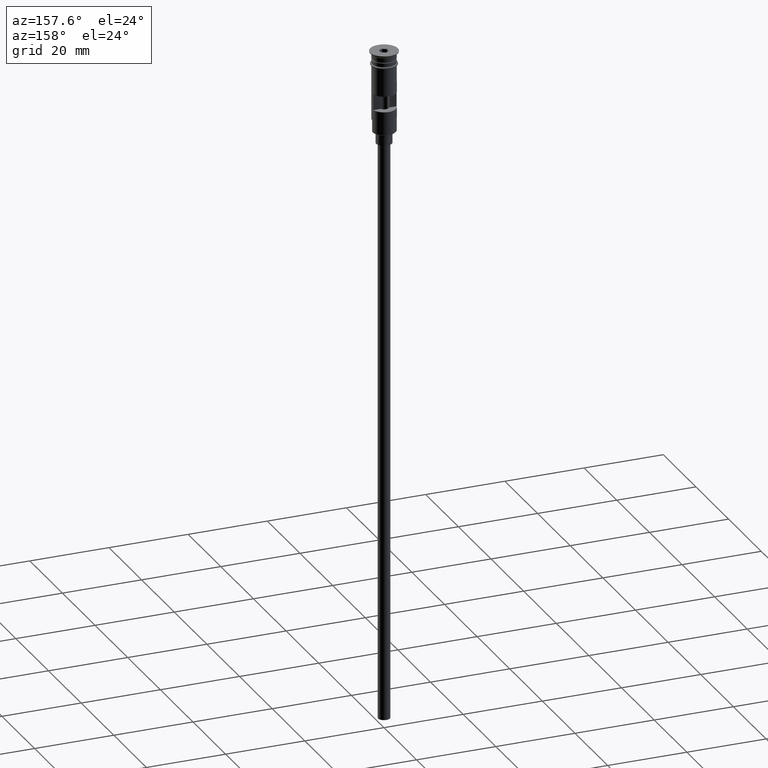
[diagram: clean part render]
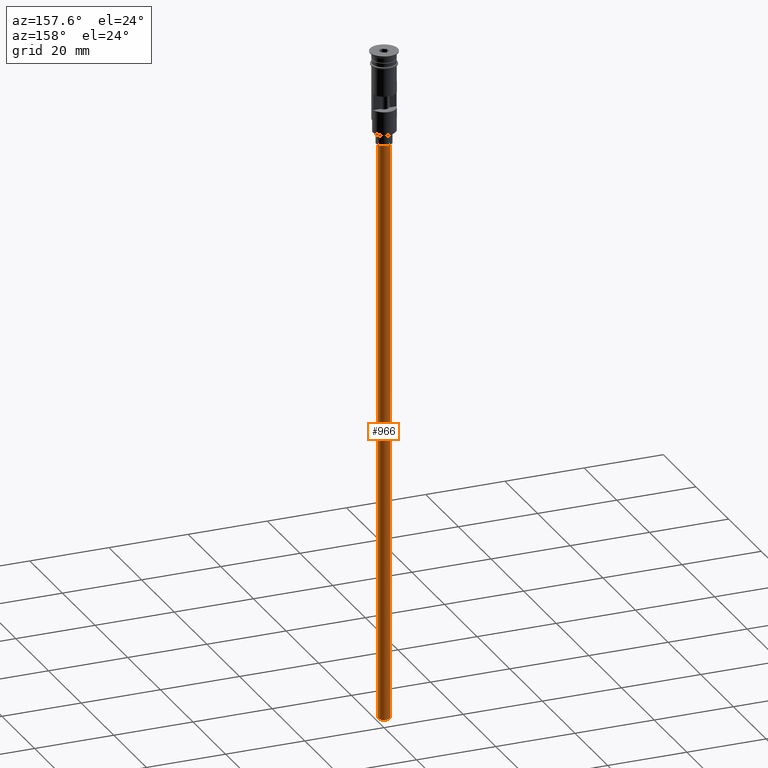
[diagram: same view with one face highlighted and labeled with its STEP entity id]
A machine part, auxiliary view. The second image highlights one B-rep face of the part: STEP entity #966.
In plain terms, the highlighted cylindrical surface (edge-blend (fillet) strip) has radius 1.5 mm, axis along (-0, -0, 1).
Its self-contained STEP definition (entity closure, byte-faithful):
#69 = CARTESIAN_POINT ( 'NONE',  ( 0.000000000000000000, 0.000000000000000000, -170.4999999999999716 ) ) ;
#96 = EDGE_CURVE ( 'NONE', #459, #863, #1103, .T. ) ;
#111 = DIRECTION ( 'NONE',  ( -1.000000000000000000, 0.000000000000000000, 0.000000000000000000 ) ) ;
#130 = AXIS2_PLACEMENT_3D ( 'NONE', #1144, #1397, #286 ) ;
#132 = ORIENTED_EDGE ( 'NONE', *, *, #1154, .F. ) ;
#155 = FACE_OUTER_BOUND ( 'NONE', #1055, .T. ) ;
#167 = VERTEX_POINT ( 'NONE', #606 ) ;
#209 = ORIENTED_EDGE ( 'NONE', *, *, #1043, .F. ) ;
#225 = CARTESIAN_POINT ( 'NONE',  ( 0.000000000000000000, 0.000000000000000000, -23.50000000000000000 ) ) ;
#237 = ORIENTED_EDGE ( 'NONE', *, *, #96, .T. ) ;
#265 = CARTESIAN_POINT ( 'NONE',  ( 1.500000000000000222, 0.000000000000000000, -170.4999999999999716 ) ) ;
#286 = DIRECTION ( 'NONE',  ( 1.000000000000000000, 0.000000000000000000, 0.000000000000000000 ) ) ;
#310 = ORIENTED_EDGE ( 'NONE', *, *, #1390, .T. ) ;
#408 = CARTESIAN_POINT ( 'NONE',  ( 1.500000000000000222, 0.000000000000000000, -23.50000000000000000 ) ) ;
#459 = VERTEX_POINT ( 'NONE', #1193 ) ;
#488 = VECTOR ( 'NONE', #1194, 1000.000000000000000 ) ;
#560 = DIRECTION ( 'NONE',  ( -1.000000000000000000, 0.000000000000000000, 0.000000000000000000 ) ) ;
#589 = VECTOR ( 'NONE', #753, 1000.000000000000000 ) ;
#606 = CARTESIAN_POINT ( 'NONE',  ( -1.500000000000000222, 1.836970198721030181E-16, -170.4999999999999716 ) ) ;
#640 = CYLINDRICAL_SURFACE ( 'NONE', #130, 1.500000000000000222 ) ;
#682 = CARTESIAN_POINT ( 'NONE',  ( -1.500000000000000222, 1.836970198721030181E-16, -170.4999999999999716 ) ) ;
#753 = DIRECTION ( 'NONE',  ( -0.000000000000000000, -0.000000000000000000, 1.000000000000000000 ) ) ;
#789 = VERTEX_POINT ( 'NONE', #885 ) ;
#863 = VERTEX_POINT ( 'NONE', #408 ) ;
#885 = CARTESIAN_POINT ( 'NONE',  ( 1.500000000000000222, 0.000000000000000000, -170.4999999999999716 ) ) ;
#927 = LINE ( 'NONE', #682, #488 ) ;
#966 = ADVANCED_FACE ( 'NONE', ( #155 ), #640, .T. ) ;
#1027 = LINE ( 'NONE', #265, #589 ) ;
#1043 = EDGE_CURVE ( 'NONE', #167, #789, #1319, .T. ) ;
#1055 = EDGE_LOOP ( 'NONE', ( #209, #310, #237, #132 ) ) ;
#1103 = CIRCLE ( 'NONE', #1239, 1.500000000000000222 ) ;
#1144 = CARTESIAN_POINT ( 'NONE',  ( 0.000000000000000000, 0.000000000000000000, -170.4999999999999716 ) ) ;
#1154 = EDGE_CURVE ( 'NONE', #789, #863, #1027, .T. ) ;
#1193 = CARTESIAN_POINT ( 'NONE',  ( -1.500000000000000222, 1.836970198721030181E-16, -23.50000000000000000 ) ) ;
#1194 = DIRECTION ( 'NONE',  ( -0.000000000000000000, -0.000000000000000000, 1.000000000000000000 ) ) ;
#1239 = AXIS2_PLACEMENT_3D ( 'NONE', #225, #1604, #111 ) ;
#1269 = AXIS2_PLACEMENT_3D ( 'NONE', #69, #1421, #560 ) ;
#1319 = CIRCLE ( 'NONE', #1269, 1.500000000000000222 ) ;
#1390 = EDGE_CURVE ( 'NONE', #167, #459, #927, .T. ) ;
#1397 = DIRECTION ( 'NONE',  ( -0.000000000000000000, -0.000000000000000000, 1.000000000000000000 ) ) ;
#1421 = DIRECTION ( 'NONE',  ( 0.000000000000000000, 0.000000000000000000, -1.000000000000000000 ) ) ;
#1604 = DIRECTION ( 'NONE',  ( 0.000000000000000000, 0.000000000000000000, -1.000000000000000000 ) ) ;